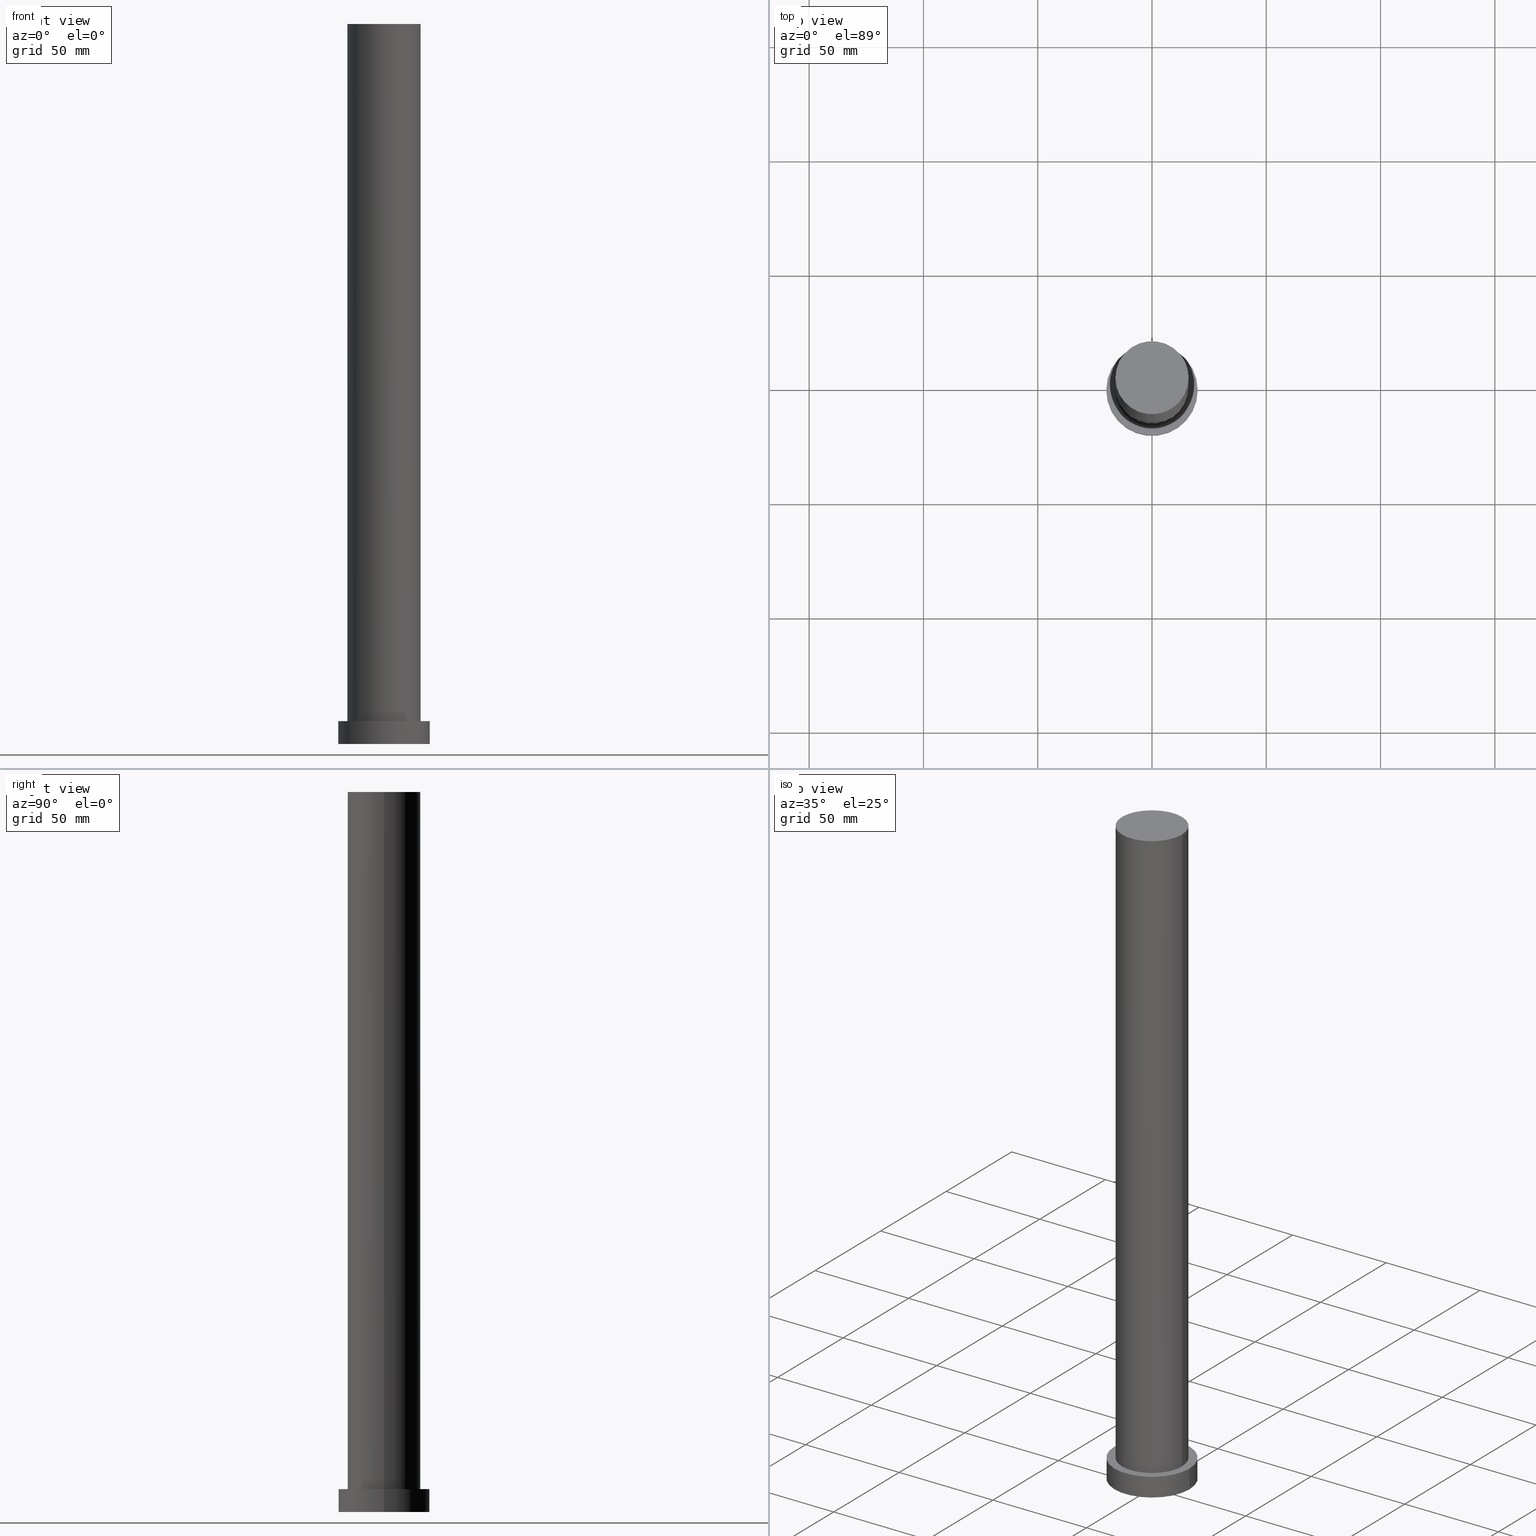
[diagram: canonical four-view strip — front | top / right | iso, engineering-drawing reading convention]
A machine part, canonical four-view strip (front | top / right | iso — engineering-drawing reading convention). The complete STEP part file that produces these views, byte-faithful:
ISO-10303-21;
HEADER;
FILE_DESCRIPTION (( 'STEP AP203' ),
    '1' );
FILE_NAME ('1916.STEP',
    '2023-02-13T07:29:28',
    ( '' ),
    ( '' ),
    'SwSTEP 2.0',
    'SolidWorks 2019',
    '' );
FILE_SCHEMA (( 'CONFIG_CONTROL_DESIGN' ));
ENDSEC;

DATA;
#1 = LOCAL_TIME ( 8, 29, 28.00000000000000000, #25 ) ;
#2 = VERTEX_POINT ( 'NONE', #158 ) ;
#3 = DATE_AND_TIME ( #18, #192 ) ;
#4 = DIRECTION ( 'NONE',  ( -0.000000000000000000, -0.000000000000000000, -1.000000000000000000 ) ) ;
#5 = CC_DESIGN_PERSON_AND_ORGANIZATION_ASSIGNMENT ( #65, #149, ( #7 ) ) ;
#6 = AXIS2_PLACEMENT_3D ( 'NONE', #30, #92, #118 ) ;
#7 = SECURITY_CLASSIFICATION ( '', '', #46 ) ;
#8 = CARTESIAN_POINT ( 'NONE',  ( 0.000000000000000000, 0.000000000000000000, 10.00000000000000000 ) ) ;
#9 = ORIENTED_EDGE ( 'NONE', *, *, #79, .T. ) ;
#10 = APPROVAL_DATE_TIME ( #226, #217 ) ;
#11 = CARTESIAN_POINT ( 'NONE',  ( 0.000000000000000000, 0.000000000000000000, 10.00000000000000000 ) ) ;
#12 = EDGE_LOOP ( 'NONE', ( #201, #251, #230, #47 ) ) ;
#13 = CARTESIAN_POINT ( 'NONE',  ( 0.000000000000000000, 0.000000000000000000, 315.0000000000000000 ) ) ;
#14 = DIRECTION ( 'NONE',  ( 1.000000000000000000, 0.000000000000000000, -0.000000000000000000 ) ) ;
#15 = CARTESIAN_POINT ( 'NONE',  ( 0.000000000000000000, 0.000000000000000000, 0.000000000000000000 ) ) ;
#16 = DIRECTION ( 'NONE',  ( 0.000000000000000000, 0.000000000000000000, 1.000000000000000000 ) ) ;
#17 = PLANE ( 'NONE',  #27 ) ;
#18 = CALENDAR_DATE ( 2023, 13, 2 ) ;
#19 = COORDINATED_UNIVERSAL_TIME_OFFSET ( 1, 0, .AHEAD. ) ;
#20 = AXIS2_PLACEMENT_3D ( 'NONE', #133, #177, #14 ) ;
#21 = LOCAL_TIME ( 8, 29, 28.00000000000000000, #238 ) ;
#22 = CARTESIAN_POINT ( 'NONE',  ( -16.00000000000000000, 0.000000000000000000, 315.0000000000000000 ) ) ;
#23 = VERTEX_POINT ( 'NONE', #127 ) ;
#24 = FACE_BOUND ( 'NONE', #91, .T. ) ;
#25 = COORDINATED_UNIVERSAL_TIME_OFFSET ( 1, 0, .AHEAD. ) ;
#26 = CARTESIAN_POINT ( 'NONE',  ( -16.00000000000000000, 0.000000000000000000, 10.00000000000000000 ) ) ;
#27 = AXIS2_PLACEMENT_3D ( 'NONE', #250, #231, #98 ) ;
#28 = AXIS2_PLACEMENT_3D ( 'NONE', #58, #105, #186 ) ;
#29 = LOCAL_TIME ( 8, 29, 28.00000000000000000, #146 ) ;
#30 = CARTESIAN_POINT ( 'NONE',  ( 0.000000000000000000, 0.000000000000000000, 0.000000000000000000 ) ) ;
#31 = ADVANCED_FACE ( 'NONE', ( #104 ), #200, .T. ) ;
#32 = FACE_OUTER_BOUND ( 'NONE', #174, .T. ) ;
#33 = EDGE_LOOP ( 'NONE', ( #147, #225 ) ) ;
#34 = APPLICATION_PROTOCOL_DEFINITION ( 'international standard', 'config_control_design', 1994, #100 ) ;
#35 = DIRECTION ( 'NONE',  ( -1.000000000000000000, 0.000000000000000000, 0.000000000000000000 ) ) ;
#36 = EDGE_CURVE ( 'NONE', #189, #134, #240, .T. ) ;
#37 = PERSON_AND_ORGANIZATION ( #128, #198 ) ;
#38 = EDGE_CURVE ( 'NONE', #247, #2, #236, .T. ) ;
#39 = APPLICATION_PROTOCOL_DEFINITION ( 'international standard', 'config_control_design', 1994, #78 ) ;
#40 = COORDINATED_UNIVERSAL_TIME_OFFSET ( 1, 0, .AHEAD. ) ;
#41 = LOCAL_TIME ( 8, 29, 28.00000000000000000, #19 ) ;
#42 = PERSON_AND_ORGANIZATION ( #128, #198 ) ;
#43 = CLOSED_SHELL ( 'NONE', ( #233, #180, #31, #125, #159, #55, #77 ) ) ;
#44 = APPROVAL_PERSON_ORGANIZATION ( #84, #217, #205 ) ;
#45 = DIRECTION ( 'NONE',  ( 1.000000000000000000, 0.000000000000000000, -0.000000000000000000 ) ) ;
#46 = SECURITY_CLASSIFICATION_LEVEL ( 'unclassified' ) ;
#47 = ORIENTED_EDGE ( 'NONE', *, *, #199, .T. ) ;
#48 = CIRCLE ( 'NONE', #221, 16.00000000000000000 ) ;
#49 = PRODUCT_DEFINITION_FORMATION_WITH_SPECIFIED_SOURCE ( 'LIBOVOLN�', '', #181, .NOT_KNOWN. ) ;
#50 = APPROVAL ( #80, 'NEUR�EN�' ) ;
#51 = SHAPE_DEFINITION_REPRESENTATION ( #237, #235 ) ;
#52 = ORIENTED_EDGE ( 'NONE', *, *, #38, .T. ) ;
#53 = CARTESIAN_POINT ( 'NONE',  ( 16.00000000000000000, 1.959434878635765131E-15, 315.0000000000000000 ) ) ;
#54 = CYLINDRICAL_SURFACE ( 'NONE', #112, 16.00000000000000000 ) ;
#55 = ADVANCED_FACE ( 'NONE', ( #185 ), #56, .T. ) ;
#56 = CYLINDRICAL_SURFACE ( 'NONE', #82, 16.00000000000000000 ) ;
#57 = CALENDAR_DATE ( 2023, 13, 2 ) ;
#58 = CARTESIAN_POINT ( 'NONE',  ( 0.000000000000000000, 0.000000000000000000, 10.00000000000000000 ) ) ;
#59 = AXIS2_PLACEMENT_3D ( 'NONE', #8, #215, #35 ) ;
#60 = CC_DESIGN_APPROVAL ( #88, ( #139 ) ) ;
#61 = DATE_AND_TIME ( #242, #41 ) ;
#62 = FACE_OUTER_BOUND ( 'NONE', #33, .T. ) ;
#63 = VECTOR ( 'NONE', #4, 1000.000000000000000 ) ;
#64 = APPROVAL_STATUS ( 'not_yet_approved' ) ;
#65 = PERSON_AND_ORGANIZATION ( #128, #198 ) ;
#66 = DIRECTION ( 'NONE',  ( 1.000000000000000000, 0.000000000000000000, 0.000000000000000000 ) ) ;
#67 = ORIENTED_EDGE ( 'NONE', *, *, #160, .T. ) ;
#68 = PRODUCT_RELATED_PRODUCT_CATEGORY ( 'detail', '', ( #181 ) ) ;
#69 = FACE_OUTER_BOUND ( 'NONE', #165, .T. ) ;
#70 = ORIENTED_EDGE ( 'NONE', *, *, #171, .T. ) ;
#71 = CIRCLE ( 'NONE', #218, 16.00000000000000000 ) ;
#72 = CYLINDRICAL_SURFACE ( 'NONE', #59, 20.00000000000000000 ) ;
#73 = ORIENTED_EDGE ( 'NONE', *, *, #124, .F. ) ;
#74 = CARTESIAN_POINT ( 'NONE',  ( 20.00000000000000000, 2.449293598294706513E-15, 10.00000000000000000 ) ) ;
#75 = VECTOR ( 'NONE', #216, 1000.000000000000000 ) ;
#76 = PERSON_AND_ORGANIZATION ( #128, #198 ) ;
#77 = ADVANCED_FACE ( 'NONE', ( #62 ), #239, .T. ) ;
#78 = APPLICATION_CONTEXT ( 'configuration controlled 3d designs of mechanical parts and assemblies' ) ;
#79 = EDGE_CURVE ( 'NONE', #2, #23, #95, .T. ) ;
#80 = APPROVAL_STATUS ( 'not_yet_approved' ) ;
#81 = DIRECTION ( 'NONE',  ( -1.000000000000000000, 0.000000000000000000, 0.000000000000000000 ) ) ;
#82 = AXIS2_PLACEMENT_3D ( 'NONE', #243, #220, #81 ) ;
#83 = DIRECTION ( 'NONE',  ( 0.000000000000000000, 0.000000000000000000, 1.000000000000000000 ) ) ;
#84 = PERSON_AND_ORGANIZATION ( #128, #198 ) ;
#85 = DIRECTION ( 'NONE',  ( 1.000000000000000000, 0.000000000000000000, 0.000000000000000000 ) ) ;
#86 = VERTEX_POINT ( 'NONE', #202 ) ;
#87 = PERSON_AND_ORGANIZATION ( #128, #198 ) ;
#88 = APPROVAL ( #156, 'NEUR�EN�' ) ;
#89 = CARTESIAN_POINT ( 'NONE',  ( 16.00000000000000000, 1.959434878635765131E-15, 315.0000000000000000 ) ) ;
#90 = DIRECTION ( 'NONE',  ( 0.000000000000000000, 0.000000000000000000, 1.000000000000000000 ) ) ;
#91 = EDGE_LOOP ( 'NONE', ( #204, #110 ) ) ;
#92 = DIRECTION ( 'NONE',  ( 0.000000000000000000, 0.000000000000000000, 1.000000000000000000 ) ) ;
#93 = VERTEX_POINT ( 'NONE', #26 ) ;
#94 = DIRECTION ( 'NONE',  ( 0.000000000000000000, 0.000000000000000000, 1.000000000000000000 ) ) ;
#95 = CIRCLE ( 'NONE', #234, 20.00000000000000000 ) ;
#96 = EDGE_LOOP ( 'NONE', ( #73, #191, #67, #168 ) ) ;
#97 = AXIS2_PLACEMENT_3D ( 'NONE', #11, #188, #172 ) ;
#98 = DIRECTION ( 'NONE',  ( 1.000000000000000000, 0.000000000000000000, -0.000000000000000000 ) ) ;
#99 =( NAMED_UNIT ( * ) PLANE_ANGLE_UNIT ( ) SI_UNIT ( $, .RADIAN. ) );
#100 = APPLICATION_CONTEXT ( 'configuration controlled 3d designs of mechanical parts and assemblies' ) ;
#101 = AXIS2_PLACEMENT_3D ( 'NONE', #154, #16, #249 ) ;
#102 = AXIS2_PLACEMENT_3D ( 'NONE', #227, #90, #113 ) ;
#103 = CC_DESIGN_PERSON_AND_ORGANIZATION_ASSIGNMENT ( #37, #121, ( #181 ) ) ;
#104 = FACE_OUTER_BOUND ( 'NONE', #208, .T. ) ;
#105 = DIRECTION ( 'NONE',  ( -0.000000000000000000, -0.000000000000000000, -1.000000000000000000 ) ) ;
#106 = EDGE_CURVE ( 'NONE', #189, #93, #115, .T. ) ;
#107 = APPROVAL_DATE_TIME ( #61, #88 ) ;
#108 = DIRECTION ( 'NONE',  ( -0.000000000000000000, -0.000000000000000000, -1.000000000000000000 ) ) ;
#109 = DATE_TIME_ROLE ( 'creation_date' ) ;
#110 = ORIENTED_EDGE ( 'NONE', *, *, #160, .F. ) ;
#111 = CALENDAR_DATE ( 2023, 13, 2 ) ;
#112 = AXIS2_PLACEMENT_3D ( 'NONE', #194, #254, #232 ) ;
#113 = DIRECTION ( 'NONE',  ( 1.000000000000000000, 0.000000000000000000, 0.000000000000000000 ) ) ;
#114 = ORIENTED_EDGE ( 'NONE', *, *, #206, .T. ) ;
#115 = LINE ( 'NONE', #22, #229 ) ;
#116 = MECHANICAL_CONTEXT ( 'NONE', #100, 'mechanical' ) ;
#117 = DIRECTION ( 'NONE',  ( 0.000000000000000000, 0.000000000000000000, 1.000000000000000000 ) ) ;
#118 = DIRECTION ( 'NONE',  ( 1.000000000000000000, 0.000000000000000000, 0.000000000000000000 ) ) ;
#119 = ORIENTED_EDGE ( 'NONE', *, *, #171, .F. ) ;
#120 = CC_DESIGN_PERSON_AND_ORGANIZATION_ASSIGNMENT ( #87, #170, ( #49 ) ) ;
#121 = PERSON_AND_ORGANIZATION_ROLE ( 'design_owner' ) ;
#122 = VECTOR ( 'NONE', #214, 1000.000000000000000 ) ;
#123 = UNCERTAINTY_MEASURE_WITH_UNIT (LENGTH_MEASURE( 1.000000000000000082E-05 ), #207, 'distance_accuracy_value', 'NONE');
#124 = EDGE_CURVE ( 'NONE', #134, #189, #48, .T. ) ;
#125 = ADVANCED_FACE ( 'NONE', ( #24, #137 ), #17, .T. ) ;
#126 = APPROVAL_ROLE ( '' ) ;
#127 = CARTESIAN_POINT ( 'NONE',  ( -20.00000000000000000, 0.000000000000000000, 0.000000000000000000 ) ) ;
#128 = PERSON ( 'NEUR�EN�', 'NEUR�EN�', 'NEUR�EN�', ('NEUR�EN�'), ('NEUR�EN�'), ('NEUR�EN�') ) ;
#129 = CC_DESIGN_PERSON_AND_ORGANIZATION_ASSIGNMENT ( #42, #164, ( #139 ) ) ;
#130 = AXIS2_PLACEMENT_3D ( 'NONE', #193, #117, #85 ) ;
#131 = DIRECTION ( 'NONE',  ( 1.000000000000000000, 0.000000000000000000, 0.000000000000000000 ) ) ;
#132 = PERSON_AND_ORGANIZATION ( #128, #198 ) ;
#133 = CARTESIAN_POINT ( 'NONE',  ( 0.000000000000000000, 0.000000000000000000, 0.000000000000000000 ) ) ;
#134 = VERTEX_POINT ( 'NONE', #53 ) ;
#135 = AXIS2_PLACEMENT_3D ( 'NONE', #13, #190, #45 ) ;
#136 = ORIENTED_EDGE ( 'NONE', *, *, #223, .T. ) ;
#137 = FACE_OUTER_BOUND ( 'NONE', #228, .T. ) ;
#138 = ORIENTED_EDGE ( 'NONE', *, *, #195, .T. ) ;
#139 = PRODUCT_DEFINITION ( 'NEZN�M�', '', #49, #184 ) ;
#140 = DIRECTION ( 'NONE',  ( 1.000000000000000000, 0.000000000000000000, 0.000000000000000000 ) ) ;
#141 = DATE_AND_TIME ( #57, #21 ) ;
#142 = APPROVAL_PERSON_ORGANIZATION ( #76, #88, #126 ) ;
#143 = DATE_TIME_ROLE ( 'classification_date' ) ;
#144 = CC_DESIGN_PERSON_AND_ORGANIZATION_ASSIGNMENT ( #132, #246, ( #49 ) ) ;
#145 = CC_DESIGN_APPROVAL ( #50, ( #7 ) ) ;
#146 = COORDINATED_UNIVERSAL_TIME_OFFSET ( 1, 0, .AHEAD. ) ;
#147 = ORIENTED_EDGE ( 'NONE', *, *, #36, .T. ) ;
#148 = ORIENTED_EDGE ( 'NONE', *, *, #38, .F. ) ;
#149 = PERSON_AND_ORGANIZATION_ROLE ( 'classification_officer' ) ;
#150 = PLANE ( 'NONE',  #20 ) ;
#151 = CIRCLE ( 'NONE', #130, 20.00000000000000000 ) ;
#152 = CARTESIAN_POINT ( 'NONE',  ( 0.000000000000000000, 0.000000000000000000, 10.00000000000000000 ) ) ;
#153 = LINE ( 'NONE', #252, #75 ) ;
#154 = CARTESIAN_POINT ( 'NONE',  ( 0.000000000000000000, 0.000000000000000000, 0.000000000000000000 ) ) ;
#155 = FACE_OUTER_BOUND ( 'NONE', #96, .T. ) ;
#156 = APPROVAL_STATUS ( 'not_yet_approved' ) ;
#157 = APPROVAL_ROLE ( '' ) ;
#158 = CARTESIAN_POINT ( 'NONE',  ( 20.00000000000000000, 2.449293598294706513E-15, 0.000000000000000000 ) ) ;
#159 = ADVANCED_FACE ( 'NONE', ( #32 ), #150, .F. ) ;
#160 = EDGE_CURVE ( 'NONE', #86, #93, #196, .T. ) ;
#161 = AXIS2_PLACEMENT_3D ( 'NONE', #163, #182, #140 ) ;
#162 = CARTESIAN_POINT ( 'NONE',  ( 20.00000000000000000, 2.449293598294706513E-15, 10.00000000000000000 ) ) ;
#163 = CARTESIAN_POINT ( 'NONE',  ( 0.000000000000000000, 0.000000000000000000, 315.0000000000000000 ) ) ;
#164 = PERSON_AND_ORGANIZATION_ROLE ( 'creator' ) ;
#165 = EDGE_LOOP ( 'NONE', ( #245, #52, #9, #213 ) ) ;
#166 = DIRECTION ( 'NONE',  ( 1.000000000000000000, 0.000000000000000000, 0.000000000000000000 ) ) ;
#167 = DIRECTION ( 'NONE',  ( 0.000000000000000000, 0.000000000000000000, 1.000000000000000000 ) ) ;
#168 = ORIENTED_EDGE ( 'NONE', *, *, #106, .F. ) ;
#169 = EDGE_CURVE ( 'NONE', #134, #86, #212, .T. ) ;
#170 = PERSON_AND_ORGANIZATION_ROLE ( 'design_supplier' ) ;
#171 = EDGE_CURVE ( 'NONE', #23, #2, #179, .T. ) ;
#172 = DIRECTION ( 'NONE',  ( 1.000000000000000000, 0.000000000000000000, 0.000000000000000000 ) ) ;
#173 = ORIENTED_EDGE ( 'NONE', *, *, #195, .F. ) ;
#174 = EDGE_LOOP ( 'NONE', ( #119, #248 ) ) ;
#175 = CC_DESIGN_DATE_AND_TIME_ASSIGNMENT ( #3, #143, ( #7 ) ) ;
#176 = VERTEX_POINT ( 'NONE', #253 ) ;
#177 = DIRECTION ( 'NONE',  ( 0.000000000000000000, 0.000000000000000000, 1.000000000000000000 ) ) ;
#178 =( NAMED_UNIT ( * ) SI_UNIT ( $, .STERADIAN. ) SOLID_ANGLE_UNIT ( ) );
#179 = CIRCLE ( 'NONE', #6, 20.00000000000000000 ) ;
#180 = ADVANCED_FACE ( 'NONE', ( #69 ), #72, .T. ) ;
#181 = PRODUCT ( '1916', '1916', '', ( #116 ) ) ;
#182 = DIRECTION ( 'NONE',  ( 0.000000000000000000, 0.000000000000000000, 1.000000000000000000 ) ) ;
#183 = MANIFOLD_SOLID_BREP ( 'P�idat vysunut�m3', #43 ) ;
#184 = DESIGN_CONTEXT ( 'detailed design', #78, 'design' ) ;
#185 = FACE_OUTER_BOUND ( 'NONE', #12, .T. ) ;
#186 = DIRECTION ( 'NONE',  ( -1.000000000000000000, 0.000000000000000000, 0.000000000000000000 ) ) ;
#187 = CARTESIAN_POINT ( 'NONE',  ( 0.000000000000000000, 0.000000000000000000, 315.0000000000000000 ) ) ;
#188 = DIRECTION ( 'NONE',  ( 0.000000000000000000, 0.000000000000000000, 1.000000000000000000 ) ) ;
#189 = VERTEX_POINT ( 'NONE', #244 ) ;
#190 = DIRECTION ( 'NONE',  ( 0.000000000000000000, 0.000000000000000000, 1.000000000000000000 ) ) ;
#191 = ORIENTED_EDGE ( 'NONE', *, *, #169, .T. ) ;
#192 = LOCAL_TIME ( 8, 29, 28.00000000000000000, #40 ) ;
#193 = CARTESIAN_POINT ( 'NONE',  ( 0.000000000000000000, 0.000000000000000000, 10.00000000000000000 ) ) ;
#194 = CARTESIAN_POINT ( 'NONE',  ( 0.000000000000000000, 0.000000000000000000, 315.0000000000000000 ) ) ;
#195 = EDGE_CURVE ( 'NONE', #176, #247, #151, .T. ) ;
#196 = CIRCLE ( 'NONE', #97, 16.00000000000000000 ) ;
#197 = CC_DESIGN_APPROVAL ( #217, ( #49 ) ) ;
#198 = ORGANIZATION ( 'NEUR�EN�', 'NEUR�EN�', '' ) ;
#199 = EDGE_CURVE ( 'NONE', #93, #86, #71, .T. ) ;
#200 = CYLINDRICAL_SURFACE ( 'NONE', #28, 20.00000000000000000 ) ;
#201 = ORIENTED_EDGE ( 'NONE', *, *, #169, .F. ) ;
#202 = CARTESIAN_POINT ( 'NONE',  ( 16.00000000000000000, 1.959434878635765131E-15, 10.00000000000000000 ) ) ;
#203 = DATE_AND_TIME ( #224, #29 ) ;
#204 = ORIENTED_EDGE ( 'NONE', *, *, #199, .F. ) ;
#205 = APPROVAL_ROLE ( '' ) ;
#206 = EDGE_CURVE ( 'NONE', #247, #176, #210, .T. ) ;
#207 =( LENGTH_UNIT ( ) NAMED_UNIT ( * ) SI_UNIT ( .MILLI., .METRE. ) );
#208 = EDGE_LOOP ( 'NONE', ( #148, #173, #136, #70 ) ) ;
#209 = CC_DESIGN_DATE_AND_TIME_ASSIGNMENT ( #203, #109, ( #139 ) ) ;
#210 = CIRCLE ( 'NONE', #102, 20.00000000000000000 ) ;
#211 = APPROVAL_PERSON_ORGANIZATION ( #222, #50, #157 ) ;
#212 = LINE ( 'NONE', #89, #122 ) ;
#213 = ORIENTED_EDGE ( 'NONE', *, *, #223, .F. ) ;
#214 = DIRECTION ( 'NONE',  ( -0.000000000000000000, -0.000000000000000000, -1.000000000000000000 ) ) ;
#215 = DIRECTION ( 'NONE',  ( -0.000000000000000000, -0.000000000000000000, -1.000000000000000000 ) ) ;
#216 = DIRECTION ( 'NONE',  ( -0.000000000000000000, -0.000000000000000000, -1.000000000000000000 ) ) ;
#217 = APPROVAL ( #64, 'NEUR�EN�' ) ;
#218 = AXIS2_PLACEMENT_3D ( 'NONE', #152, #167, #66 ) ;
#219 = APPROVAL_DATE_TIME ( #141, #50 ) ;
#220 = DIRECTION ( 'NONE',  ( -0.000000000000000000, -0.000000000000000000, -1.000000000000000000 ) ) ;
#221 = AXIS2_PLACEMENT_3D ( 'NONE', #187, #83, #166 ) ;
#222 = PERSON_AND_ORGANIZATION ( #128, #198 ) ;
#223 = EDGE_CURVE ( 'NONE', #176, #23, #153, .T. ) ;
#224 = CALENDAR_DATE ( 2023, 13, 2 ) ;
#225 = ORIENTED_EDGE ( 'NONE', *, *, #124, .T. ) ;
#226 = DATE_AND_TIME ( #111, #1 ) ;
#227 = CARTESIAN_POINT ( 'NONE',  ( 0.000000000000000000, 0.000000000000000000, 10.00000000000000000 ) ) ;
#228 = EDGE_LOOP ( 'NONE', ( #138, #114 ) ) ;
#229 = VECTOR ( 'NONE', #108, 1000.000000000000000 ) ;
#230 = ORIENTED_EDGE ( 'NONE', *, *, #106, .T. ) ;
#231 = DIRECTION ( 'NONE',  ( 0.000000000000000000, 0.000000000000000000, 1.000000000000000000 ) ) ;
#232 = DIRECTION ( 'NONE',  ( -1.000000000000000000, 0.000000000000000000, 0.000000000000000000 ) ) ;
#233 = ADVANCED_FACE ( 'NONE', ( #155 ), #54, .T. ) ;
#234 = AXIS2_PLACEMENT_3D ( 'NONE', #15, #94, #131 ) ;
#235 = ADVANCED_BREP_SHAPE_REPRESENTATION ( '1916', ( #183, #101 ), #255 ) ;
#236 = LINE ( 'NONE', #162, #63 ) ;
#237 = PRODUCT_DEFINITION_SHAPE ( 'NONE', 'NONE',  #139 ) ;
#238 = COORDINATED_UNIVERSAL_TIME_OFFSET ( 1, 0, .AHEAD. ) ;
#239 = PLANE ( 'NONE',  #135 ) ;
#240 = CIRCLE ( 'NONE', #161, 16.00000000000000000 ) ;
#241 = CC_DESIGN_SECURITY_CLASSIFICATION ( #7, ( #49 ) ) ;
#242 = CALENDAR_DATE ( 2023, 13, 2 ) ;
#243 = CARTESIAN_POINT ( 'NONE',  ( 0.000000000000000000, 0.000000000000000000, 315.0000000000000000 ) ) ;
#244 = CARTESIAN_POINT ( 'NONE',  ( -16.00000000000000000, 0.000000000000000000, 315.0000000000000000 ) ) ;
#245 = ORIENTED_EDGE ( 'NONE', *, *, #206, .F. ) ;
#246 = PERSON_AND_ORGANIZATION_ROLE ( 'creator' ) ;
#247 = VERTEX_POINT ( 'NONE', #74 ) ;
#248 = ORIENTED_EDGE ( 'NONE', *, *, #79, .F. ) ;
#249 = DIRECTION ( 'NONE',  ( 1.000000000000000000, 0.000000000000000000, 0.000000000000000000 ) ) ;
#250 = CARTESIAN_POINT ( 'NONE',  ( 0.000000000000000000, 0.000000000000000000, 10.00000000000000000 ) ) ;
#251 = ORIENTED_EDGE ( 'NONE', *, *, #36, .F. ) ;
#252 = CARTESIAN_POINT ( 'NONE',  ( -20.00000000000000000, 0.000000000000000000, 10.00000000000000000 ) ) ;
#253 = CARTESIAN_POINT ( 'NONE',  ( -20.00000000000000000, 0.000000000000000000, 10.00000000000000000 ) ) ;
#254 = DIRECTION ( 'NONE',  ( -0.000000000000000000, -0.000000000000000000, -1.000000000000000000 ) ) ;
#255 =( GEOMETRIC_REPRESENTATION_CONTEXT ( 3 ) GLOBAL_UNCERTAINTY_ASSIGNED_CONTEXT ( ( #123 ) ) GLOBAL_UNIT_ASSIGNED_CONTEXT ( ( #207, #99, #178 ) ) REPRESENTATION_CONTEXT ( 'NONE', 'WORKASPACE' ) );
ENDSEC;
END-ISO-10303-21;
